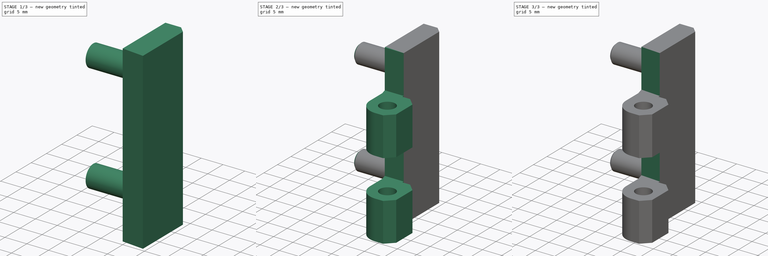
[diagram: build sequence overview — one tinted view per stage of 3, left to right]
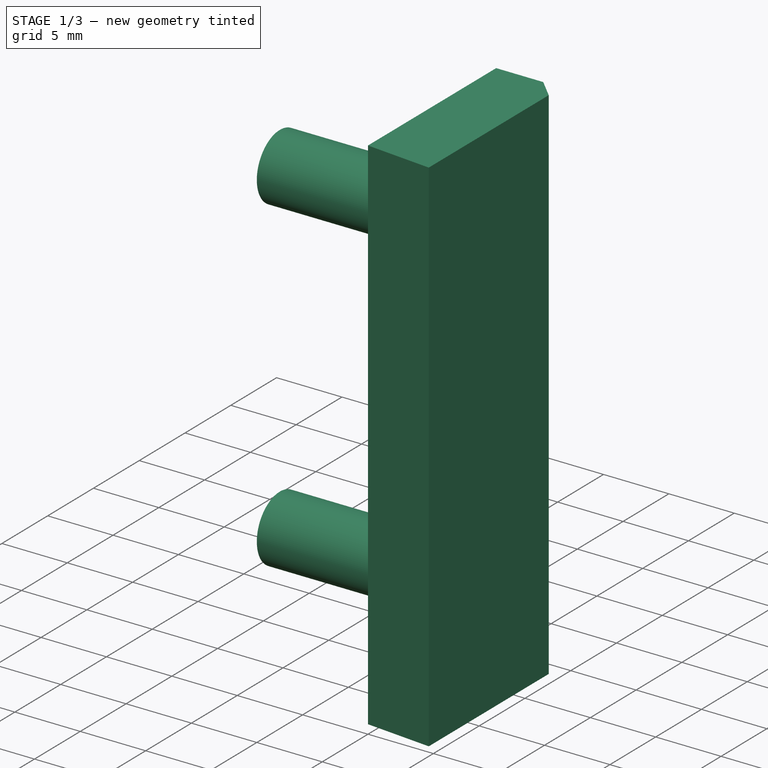
[diagram: stage 1 of 3 — iso view after this stage's code; geometry added in this stage tinted green]
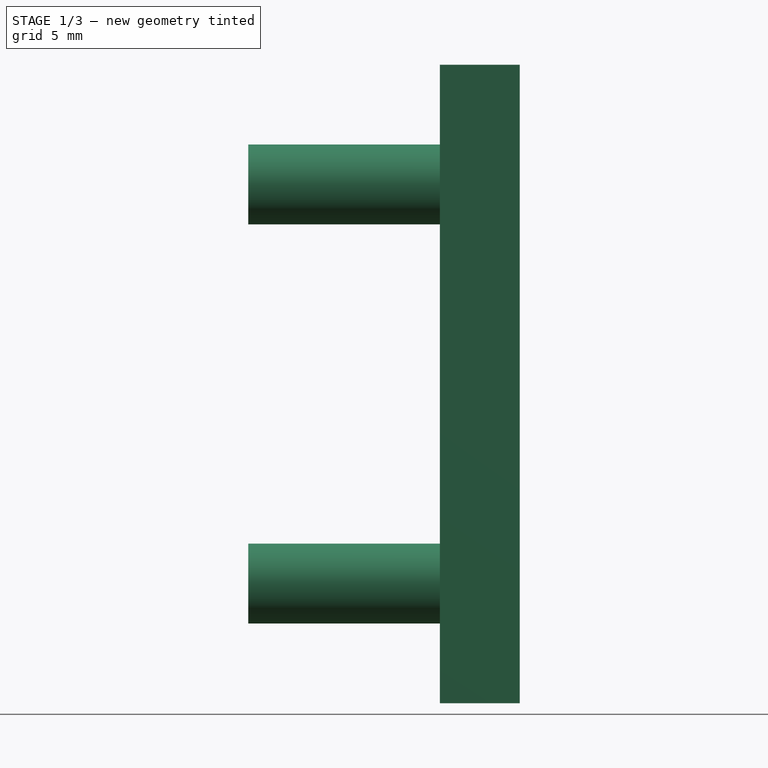
[diagram: stage 1 of 3 — front view after this stage's code; geometry added in this stage tinted green]
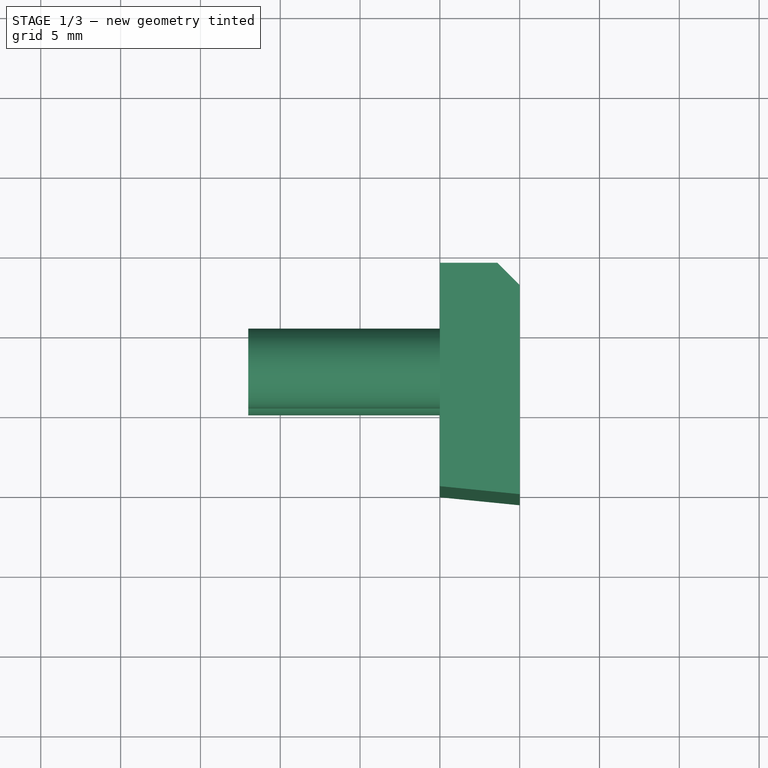
[diagram: stage 1 of 3 — top view after this stage's code; geometry added in this stage tinted green]
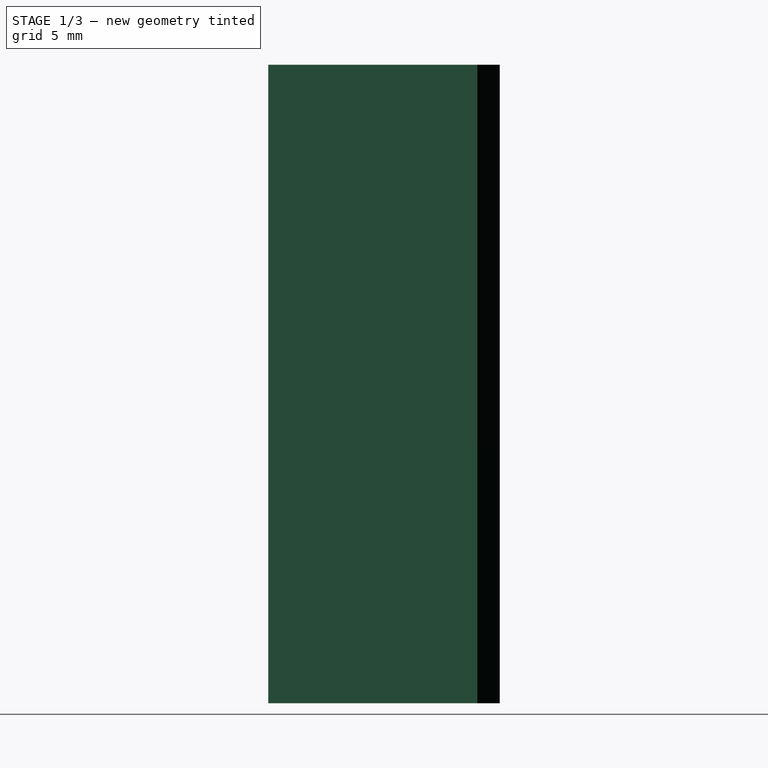
[diagram: stage 1 of 3 — right view after this stage's code; geometry added in this stage tinted green]
FCSTD DOCUMENT  (FreeCAD 0.14R3310 (Git))
Label: 28. VISAGRA 3_1
License: CC-BY 3.0
LicenseURL: http://creativecommons.org/licenses/by/3.0/
objects: Sketcher::SketchObject×6, PartDesign::Pad×3, PartDesign::Pocket×3, PartDesign::Chamfer×1
note: 19 computed .brp shape members not serialized (recipe doc carries the construction recipe); baked Part::Feature solids carry a one-line shape summary decoded from their .brp

FEATURE [Sketcher::SketchObject] Sketch
  sketch-geometry (5):
    g0: LineSegment StartX=0 StartY=14 StartZ=0 EndX=0 EndY=0 EndZ=0
    g1: LineSegment StartX=0 StartY=0 StartZ=0 EndX=5.00007 EndY=-0.499955 EndZ=0
    g2: LineSegment StartX=5.00007 StartY=-0.499955 StartZ=0 EndX=5.00007 EndY=12.5999 EndZ=0
    g3: LineSegment StartX=5.00007 StartY=12.5999 StartZ=0 EndX=3.6 EndY=14 EndZ=0
    g4: LineSegment StartX=3.6 StartY=14 StartZ=0 EndX=0 EndY=14 EndZ=0
  constraints (15):
    c: PointOnObject(g0,g-2)
    c: Coincident(g0,g-1)
    c: Coincident(g0,g1)
    c: Coincident(g1,g2)
    c: Vertical(g2)
    c: Coincident(g2,g3)
    c: Coincident(g3,g4)
    c: Horizontal(g4)
    c: PointOnObject(g4,g-2)
    c: Coincident(g4,g0)
    c: Distance(g4) = 3.6
    c: Distance(g3) = 1.98
    c: Angle(g4,g3) = 2.35619
    c: Distance(g0) = 14
    c: Angle(g1,g-1) = 0.0996583
FEATURE [PartDesign::Pad] Pad
  Length = 40
  Length2 = 100
  Sketch = -> Sketch
  Type = 0
FEATURE [Sketcher::SketchObject] Sketch001
  ExternalGeometry = -> [Pad]
  Placement = pos=(0,0,0) rot=(0.57735,-0.57735,-0.57735;2.0944rad)
  Support = -> Pad [Face1]
  sketch-geometry (2):
    g0: Circle CenterX=-7.5 CenterY=32.5 CenterZ=0 NormalX=0 NormalY=0 NormalZ=1 Radius=2.5
    g1: Circle CenterX=-7.5 CenterY=7.5 CenterZ=0 NormalX=0 NormalY=0 NormalZ=1 Radius=2.5
  constraints (6):
    c: DistanceX(g-2,g0) = -7.5
    c: DistanceX(g-2,g1) = -7.5
    c: Distance(g0,g-3) = 7.5
    c: Distance(g1,g0) = 25
    c: Equal(g0,g1)
    c: Radius(g0) = 2.5
FEATURE [PartDesign::Pad] Pad001
  Length = 12
  Length2 = 100
  Sketch = -> Sketch001
  Type = 0
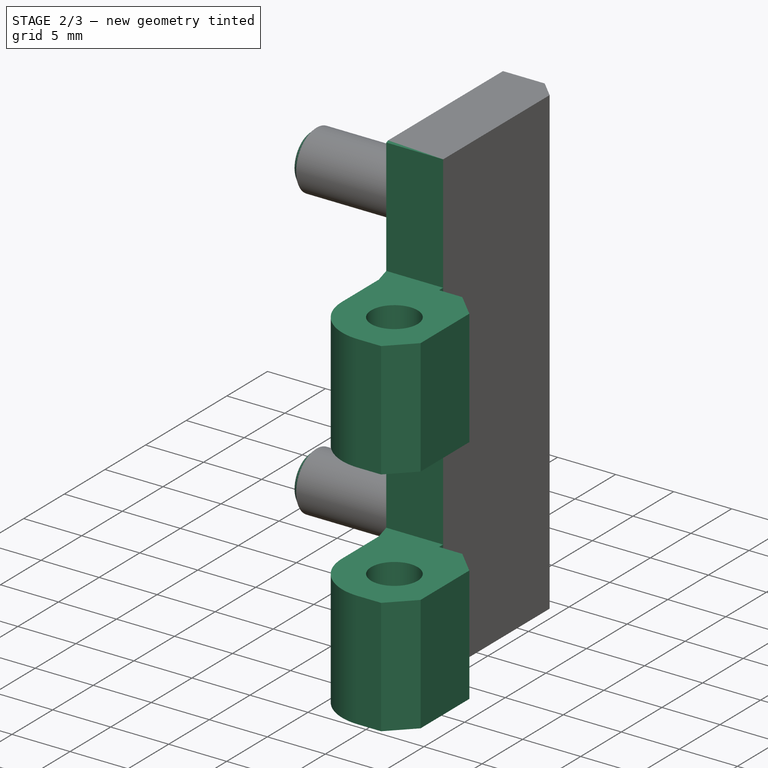
[diagram: stage 2 of 3 — iso view after this stage's code; geometry added in this stage tinted green]
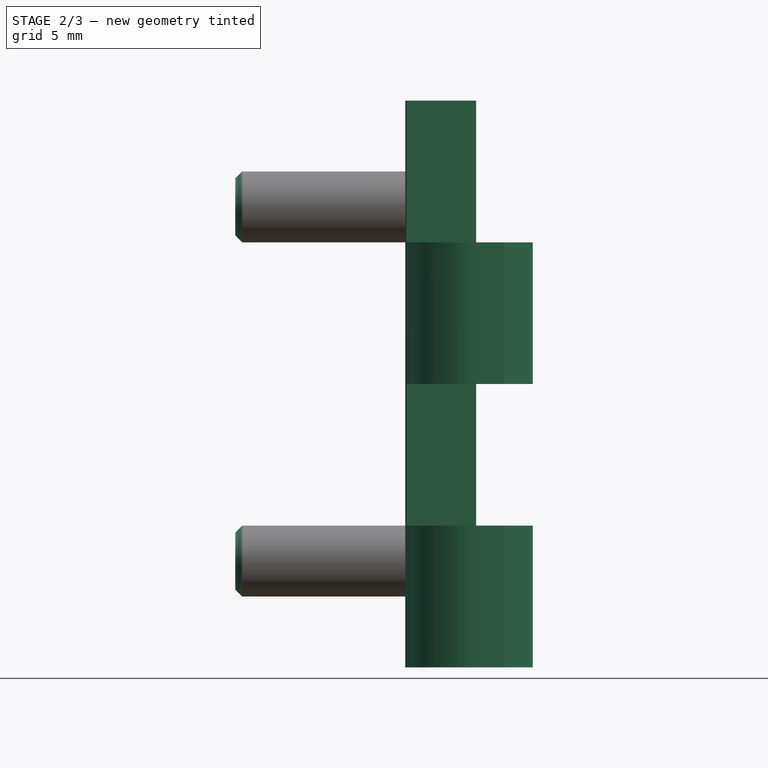
[diagram: stage 2 of 3 — front view after this stage's code; geometry added in this stage tinted green]
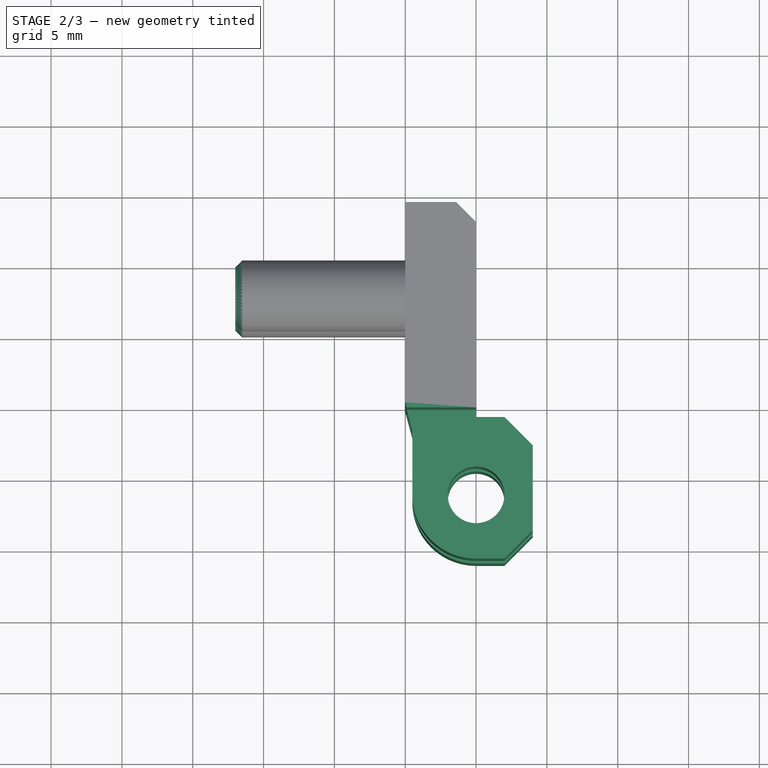
[diagram: stage 2 of 3 — top view after this stage's code; geometry added in this stage tinted green]
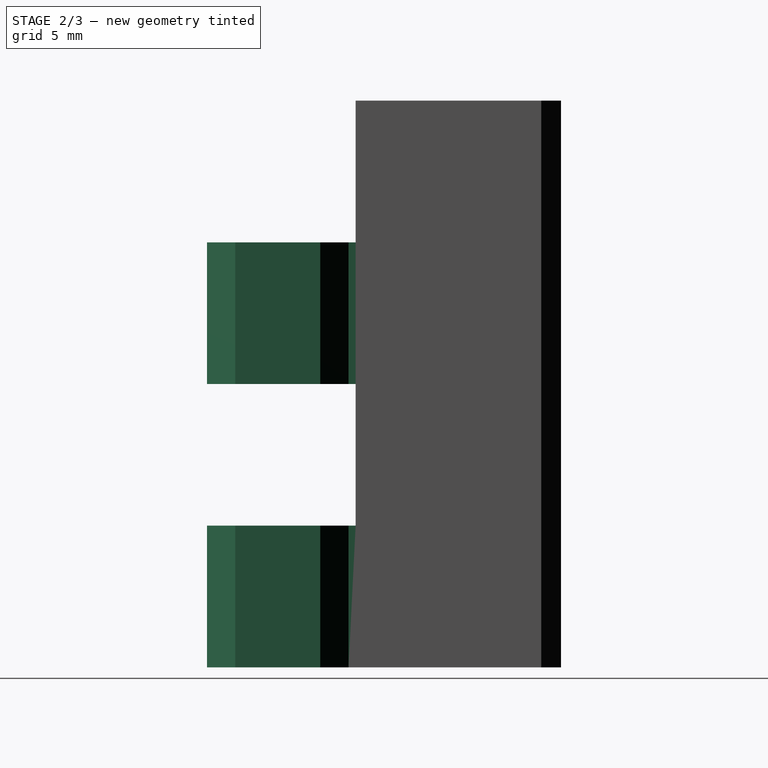
[diagram: stage 2 of 3 — right view after this stage's code; geometry added in this stage tinted green]
FEATURE [PartDesign::Chamfer] Chamfer
  Base = -> Pad001 [Edge19,Edge21]
  Size = 0.49
FEATURE [Sketcher::SketchObject] Sketch002
  ExternalGeometry = -> [Chamfer]
  Placement = pos=(0,0,40) rot=(0,0,1;0rad)
  Support = -> Chamfer [Face7]
  sketch-geometry (12):
    g0: LineSegment StartX=5.00007 StartY=-0.499955 StartZ=0 EndX=0 EndY=0 EndZ=0
    g1: LineSegment StartX=0 StartY=0 StartZ=0 EndX=0 EndY=-0.13 EndZ=0
    g2: LineSegment StartX=0 StartY=-0.13 StartZ=0 EndX=0.499521 EndY=-1.99424 EndZ=0
    g3: LineSegment StartX=0.499521 StartY=-1.99424 StartZ=0 EndX=0.499521 EndY=-6.49424 EndZ=0
    g4: ArcOfCircle CenterX=4.99952 CenterY=-6.49426 CenterZ=0 NormalX=0 NormalY=0 NormalZ=1 Radius=4.5 StartAngle=3.14159 EndAngle=4.71239
    g5: LineSegment StartX=4.99952 StartY=-10.9943 StartZ=0 EndX=6.99952 EndY=-10.9943 EndZ=0
    g6: LineSegment StartX=6.99952 StartY=-10.9943 StartZ=0 EndX=9.00063 EndY=-8.99315 EndZ=0
    g7: LineSegment StartX=9.00063 StartY=-8.99315 StartZ=0 EndX=9.00063 EndY=-2.99315 EndZ=0
    g8: LineSegment StartX=9.00063 StartY=-2.99315 StartZ=0 EndX=7.00007 EndY=-0.999955 EndZ=0
    g9: Circle CenterX=4.99952 CenterY=-6.49426 CenterZ=0 NormalX=0 NormalY=0 NormalZ=1 Radius=2
    g10: LineSegment StartX=5.00007 StartY=-0.499955 StartZ=0 EndX=5.00007 EndY=-0.999955 EndZ=0
    g11: LineSegment StartX=5.00007 StartY=-0.999955 StartZ=0 EndX=7.00007 EndY=-0.999955 EndZ=0
  constraints (34):
    c: Coincident(g0,g-3)
    c: Coincident(g0,g-1)
    c: Coincident(g1,g-1)
    c: Vertical(g1)
    c: Distance(g1) = 0.13
    c: Coincident(g2,g1)
    c: Angle(g2,g1) = 2.87979
    c: Distance(g2) = 1.93
    c: Coincident(g3,g2)
    c: Vertical(g3)
    c: Distance(g3) = 4.5
    c: Coincident(g4,g3)
    c: Tangent(g4,g3)
    c: Radius(g4) = 4.5
    c: Coincident(g5,g4)
    c: Horizontal(g5)
    c: Tangent(g4,g5)
    c: Distance(g5) = 2
    c: Coincident(g6,g5)
    c: Distance(g6) = 2.83
    c: Angle(g6,g5) = 2.35619
    c: Coincident(g7,g6)
    c: Vertical(g7)
    c: Distance(g7) = 6
    c: Coincident(g8,g7)
    c: Coincident(g9,g4)
    c: Radius(g9) = 2
    c: Vertical(g10)
    c: Coincident(g10,g0)
    c: Distance(g10) = 0.5
    c: Coincident(g11,g10)
    c: Horizontal(g11)
    c: Distance(g11) = 2
    c: Coincident(g8,g11)
FEATURE [PartDesign::Pad] Pad002
  Length = 40
  Length2 = 100
  Reversed = true
  Sketch = -> Sketch002
  Type = 0
FEATURE [Sketcher::SketchObject] Sketch003
  ExternalGeometry = -> [Pad002]
  Placement = pos=(9.00063,0,0) rot=(0.57735,0.57735,0.57735;2.0944rad)
  Support = -> Pad002 [Face7]
  sketch-geometry (10):
    g0: LineSegment [constr] StartX=-0.499955 StartY=40 StartZ=0 EndX=-0.499955 EndY=0 EndZ=0
    g1: LineSegment [constr] StartX=-0.499955 StartY=40 StartZ=0 EndX=-0.999955 EndY=40 EndZ=0
    g2: LineSegment StartX=-0.499955 StartY=30 StartZ=0 EndX=-15.5 EndY=30 EndZ=0
    g3: LineSegment StartX=-15.5 StartY=30 StartZ=0 EndX=-15.5 EndY=40 EndZ=0
    g4: LineSegment StartX=-15.5 StartY=40 StartZ=0 EndX=-0.499955 EndY=40 EndZ=0
    g5: LineSegment StartX=-0.499955 StartY=40 StartZ=0 EndX=-0.499955 EndY=30 EndZ=0
    g6: LineSegment StartX=-0.499955 StartY=10 StartZ=0 EndX=-15.5 EndY=10 EndZ=0
    g7: LineSegment StartX=-15.5 StartY=10 StartZ=0 EndX=-15.5 EndY=20 EndZ=0
    g8: LineSegment StartX=-15.5 StartY=20 StartZ=0 EndX=-0.499955 EndY=20 EndZ=0
    g9: LineSegment StartX=-0.499955 StartY=20 StartZ=0 EndX=-0.499955 EndY=10 EndZ=0
  constraints (30):
    c: PointOnObject(g0,g-1)
    c: Vertical(g0)
    c: Distance(g0,g-3) = 0.5
    c: Coincident(g1,g0)
    c: Coincident(g1,g-3)
    c: Horizontal(g1)
    c: Coincident(g2,g3)
    c: Coincident(g3,g4)
    c: Coincident(g4,g5)
    c: Coincident(g5,g2)
    c: Horizontal(g2)
    c: Horizontal(g4)
    c: Vertical(g3)
    c: Vertical(g5)
    c: PointOnObject(g2,g0)
    c: Coincident(g6,g7)
    c: Coincident(g7,g8)
    c: Coincident(g8,g9)
    c: Coincident(g9,g6)
    c: Horizontal(g6)
    c: Horizontal(g8)
    c: Vertical(g7)
    c: Vertical(g9)
    c: PointOnObject(g6,g0)
    c: Equal(g7,g3)
    c: Distance(g3) = 10
    c: Distance(g4) = 15
    c: Equal(g8,g4)
    c: Distance(g7,g2) = 10
    c: Coincident(g4,g0)
FEATURE [PartDesign::Pocket] Pocket
  Length = 5
  Sketch = -> Sketch003
  Type = 1
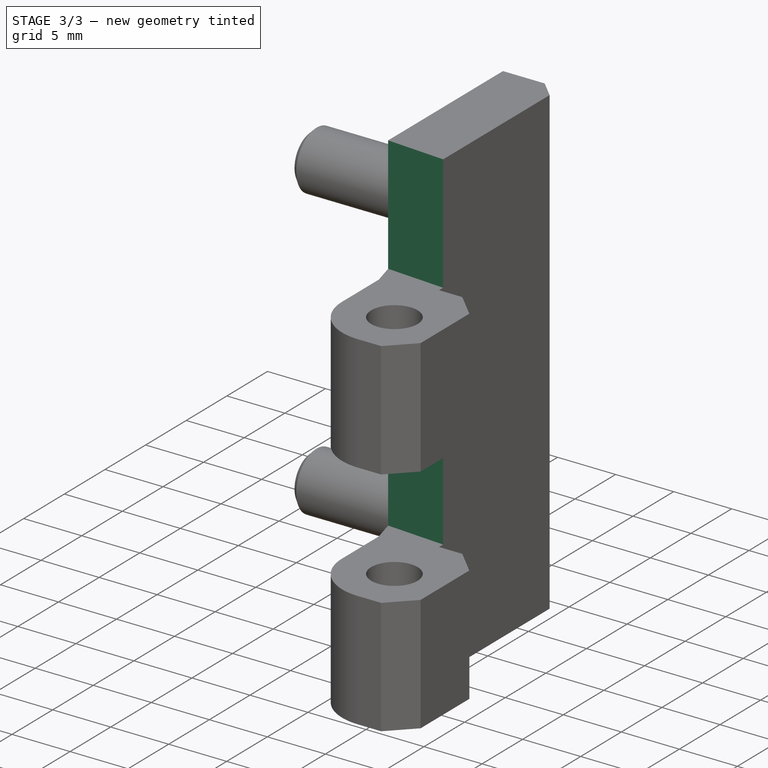
[diagram: stage 3 of 3 — iso view after this stage's code; geometry added in this stage tinted green]
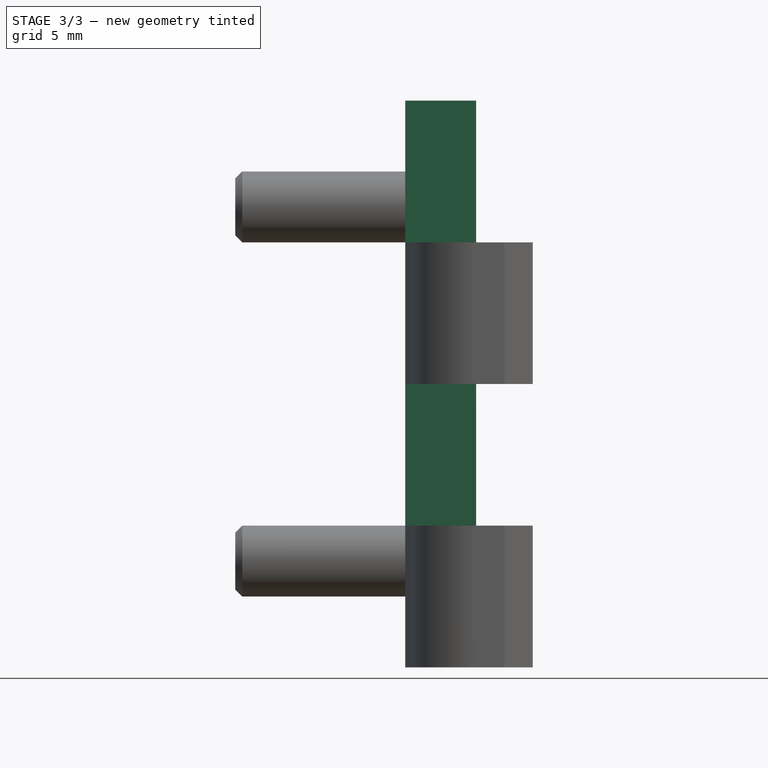
[diagram: stage 3 of 3 — front view after this stage's code; geometry added in this stage tinted green]
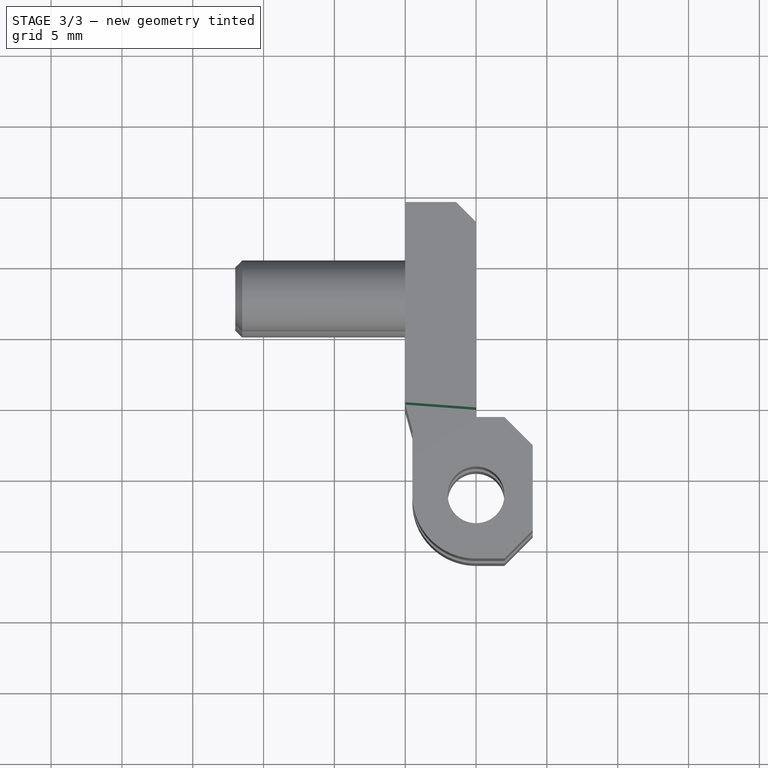
[diagram: stage 3 of 3 — top view after this stage's code; geometry added in this stage tinted green]
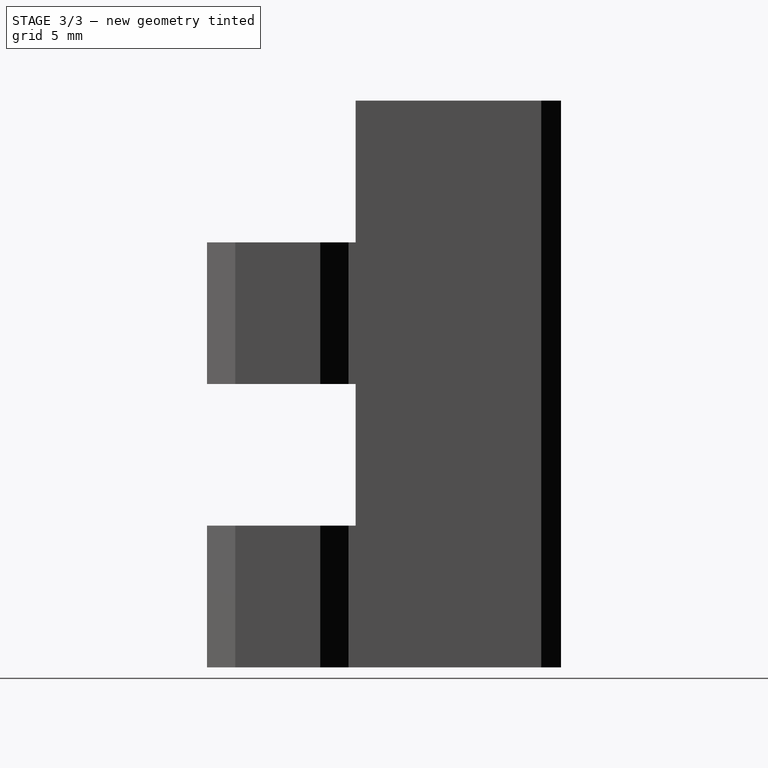
[diagram: stage 3 of 3 — right view after this stage's code; geometry added in this stage tinted green]
FEATURE [Sketcher::SketchObject] Sketch005
  ExternalGeometry = -> [Pocket]
  Placement = pos=(0,0,30) rot=(0,0,1;0rad)
  Support = -> Pocket [Face4]
  sketch-geometry (4):
    g0: LineSegment StartX=0 StartY=-0.13 StartZ=0 EndX=5.00007 EndY=-0.499955 EndZ=0
    g1: LineSegment StartX=0 StartY=-0.999955 StartZ=0 EndX=5.00007 EndY=-0.999955 EndZ=0
    g2: LineSegment StartX=0 StartY=-0.13 StartZ=0 EndX=0 EndY=-0.999955 EndZ=0
    g3: LineSegment StartX=5.00007 StartY=-0.499955 StartZ=0 EndX=5.00007 EndY=-0.999955 EndZ=0
  constraints (9):
    c: Coincident(g0,g-4)
    c: Coincident(g0,g-3)
    c: Horizontal(g1)
    c: Coincident(g1,g-3)
    c: PointOnObject(g1,g-2)
    c: Coincident(g2,g0)
    c: Coincident(g2,g1)
    c: Coincident(g3,g0)
    c: Coincident(g3,g1)
FEATURE [PartDesign::Pocket] Pocket001
  Length = 10
  Reversed = true
  Sketch = -> Sketch005
  Type = 0
FEATURE [Sketcher::SketchObject] Sketch006
  ExternalGeometry = -> [Pocket001]
  Placement = pos=(0,0,20) rot=(1,0,0;3.14159rad)
  Support = -> Pocket001 [Face3]
  sketch-geometry (3):
    g0: LineSegment StartX=5.00007 StartY=0.499955 StartZ=0 EndX=0 EndY=0.499955 EndZ=0
    g1: LineSegment StartX=5.00007 StartY=0.499955 StartZ=0 EndX=0 EndY=0.13 EndZ=0
    g2: LineSegment StartX=0 StartY=0.13 StartZ=0 EndX=0 EndY=0.499955 EndZ=0
  constraints (7):
    c: Coincident(g0,g-4)
    c: Horizontal(g0)
    c: PointOnObject(g0,g-2)
    c: Coincident(g1,g0)
    c: Coincident(g1,g-3)
    c: Coincident(g2,g1)
    c: Coincident(g0,g2)
FEATURE [PartDesign::Pocket] Pocket002
  Length = 10
  Reversed = true
  Sketch = -> Sketch006
  Type = 0
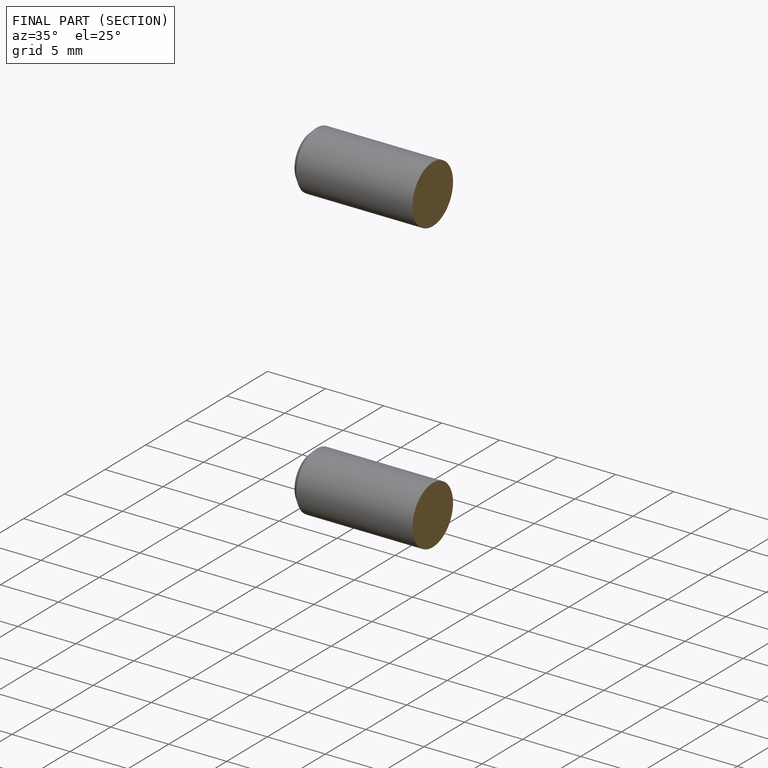
[diagram: finished part — half-section view (interior)]
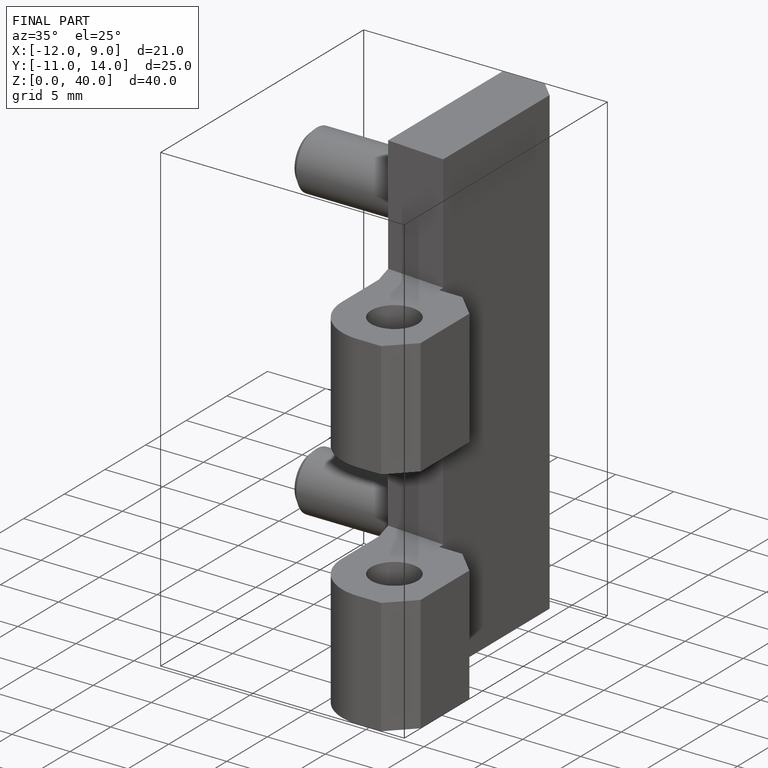
[diagram: finished part — iso view with bounding-box wireframe]
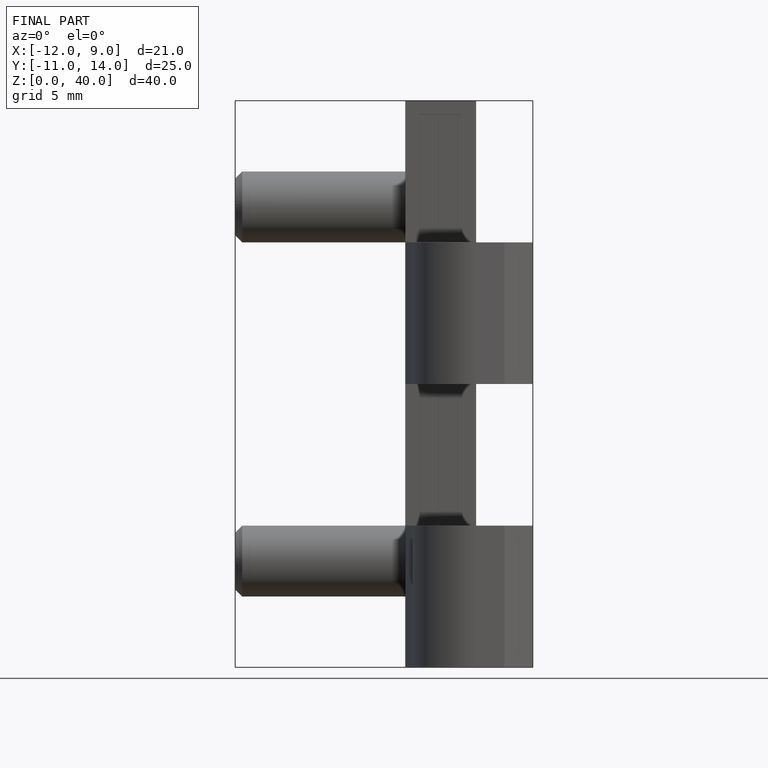
[diagram: finished part — front view with bounding-box wireframe]
